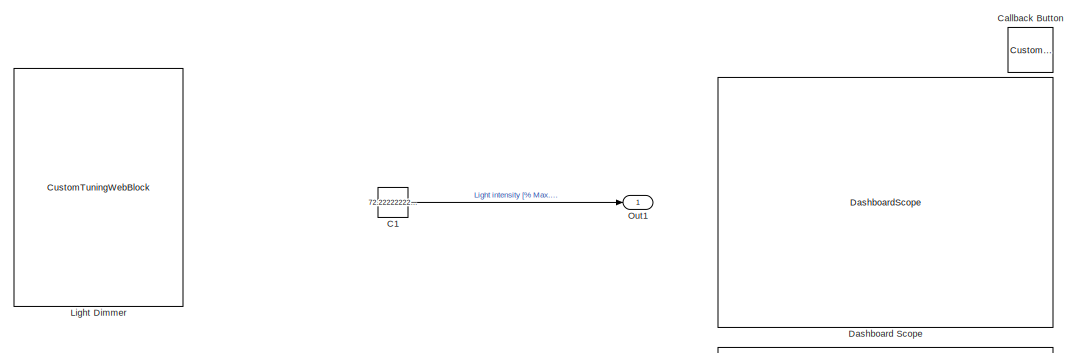
[diagram: root canvas - part 1/2, full width, top band]
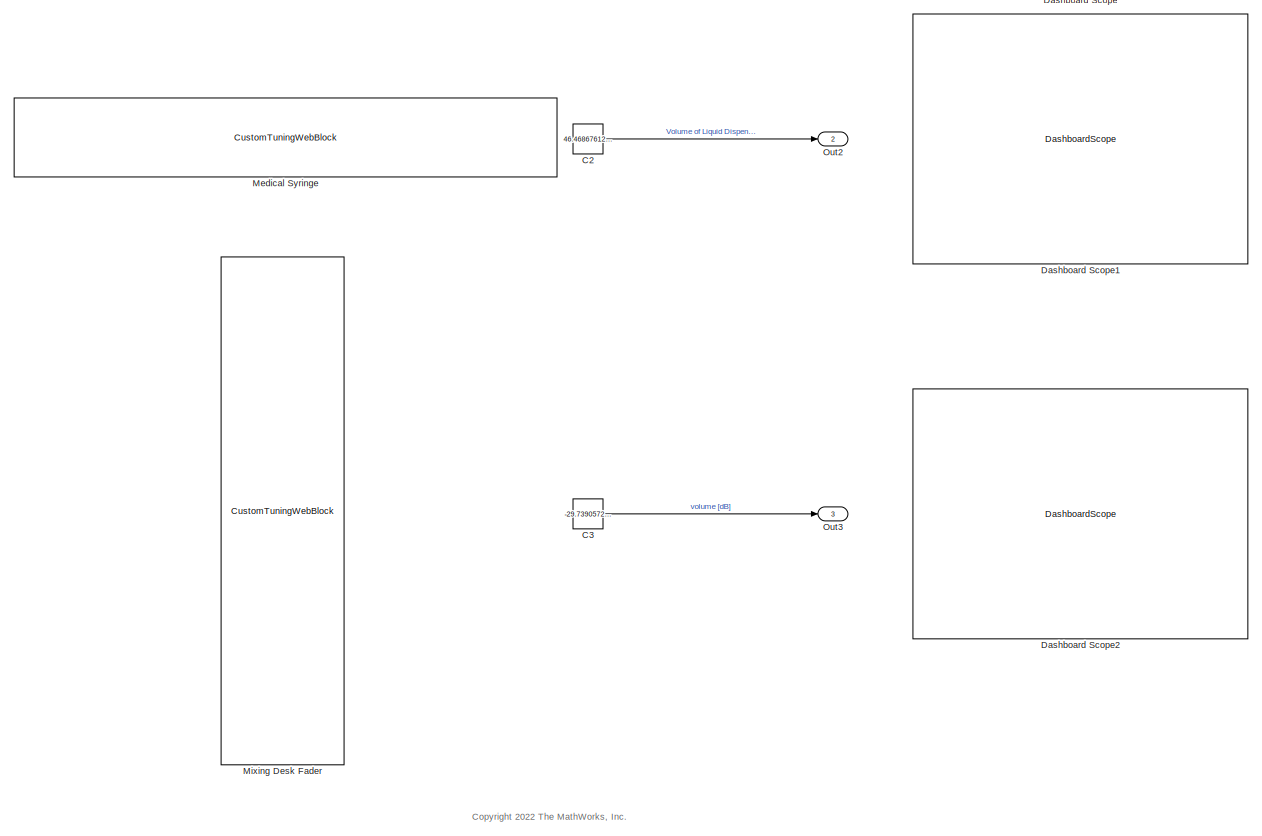
[diagram: root canvas - part 2/2, full width, middle band]
MODEL slx_7b7ba9aca27a
KIND model
CONFIG AbsTol = auto
CONFIG EnableMultiTasking = off
CONFIG FixedStep = auto
CONFIG MaxStep = auto
CONFIG MinStep = auto
CONFIG RelTol = 1e-3
CONFIG SampleTimeConstraint = Unconstrained
CONFIG SolverName = VariableStepAuto
CONFIG StartTime = 0.0
CONFIG StopTime = 10.0
BLOCK [Constant] C1
  Value = 72.22222222222223
BLOCK [Constant] C2
  Value = 46.46867612293145
BLOCK [Constant] C3
  Value = -29.73905723905724
BLOCK [CustomCallbackButton] Callback Button
  Configuration = {"components":[{"name":"BackgroundImageComponent","settings":{"image":{"size":[0,0],"src":"default","srcOrientation":"Right"},"position":[0,0,1,1]}},{"name":"ButtonStateComponent","settings":{"buttonType":"momentary","clickFcn":"showExample('simulink\/DesignCustomSlidersExample');","onValue":1,"position":[0,0,1,1],"pressDelay":"500","pressFcn":"","repeatInterval":"0","states":[{"horizontalAlignmen...<+2030ch>
  CustomBackgroundColor = {"color":[0.9568627451,0.9568627451,0.9568627451],"show":true}
BLOCK [DashboardScope] Dashboard Scope
  Ymax = 1
  Ymin = 0
BLOCK [DashboardScope] Dashboard Scope1
  Ymax = 1
  Ymin = 0
BLOCK [DashboardScope] Dashboard Scope2
  Ymax = 1
  Ymin = 0
BLOCK [CustomTuningWebBlock] Light Dimmer
  Configuration = {"components":[{"name":"LinearScaleComponent","settings":{"bounds":{"max":100,"min":0,"tickInterval":"auto"},"internalTickHeightScaleFactor":0.5,"labelColor":[255,255,200],"labelFont":{"font":"Arial","fontSize":12},"labelOffset":0.05,"labelTransparency":1,"needleImage":{"size":[1144,1604],"src":"data:image\/png;base64,iVBORw0KGgoAAAANSUhEUgAABHgAAAZECAYAAACZ1be8AAAAAXNSR0IArs4c6QAAAARnQU1BAACxjwv8...<+392874ch>
  LabelPosition = Hide
  ShowInitialText = on
BLOCK [CustomTuningWebBlock] Medical Syringe
  Configuration = {"components":[{"name":"LinearScaleComponent","settings":{"bounds":{"max":100,"min":0,"tickInterval":"auto"},"internalTickHeightScaleFactor":0.5,"labelColor":[255,255,200],"labelFont":{"font":"Arial","fontSize":12},"labelOffset":0.05,"labelTransparency":1,"needleImage":{"size":[2348,344],"src":"data:image\/png;base64,iVBORw0KGgoAAAANSUhEUgAACSwAAAFYCAMAAABk09DVAAAAAXNSR0IArs4c6QAAAARnQU1BAACxjwv8Y...<+28355ch>
  LabelPosition = Hide
  ShowInitialText = on
BLOCK [CustomTuningWebBlock] Mixing Desk Fader
  Configuration = {"components":[{"name":"LinearScaleComponent","settings":{"bounds":{"max":10,"min":-60,"tickInterval":"auto"},"internalTickHeightScaleFactor":1,"labelColor":[0,0,0],"labelFont":{"font":"Arial","fontSize":12},"labelOffset":0.15,"labelTransparency":1,"needleImage":{"size":[97,144],"src":"data:image\/png;base64,iVBORw0KGgoAAAANSUhEUgAAAGEAAACQCAMAAAAvFvUtAAAAAXNSR0IArs4c6QAAAARnQU1BAACxjwv8YQUAAAGDUE...<+73296ch>
  LabelPosition = Hide
  ShowInitialText = on
BLOCK [Outport] Out1
  SignalName = Intensity
BLOCK [Outport] Out2
  Port = 2
  SignalName = Volume
BLOCK [Outport] Out3
  Port = 3
  SignalName = Volume
ANNOTATION (root): <copyright redacted>
LINE C1:1 -> Out1:1
LINE C2:1 -> Out2:1
LINE C3:1 -> Out3:1
